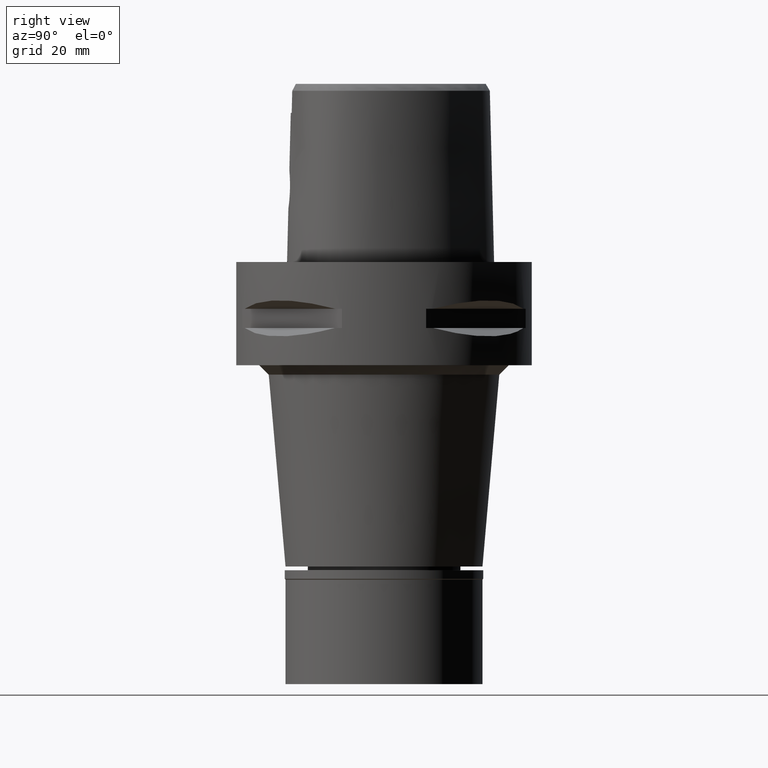
[diagram: clean part render]
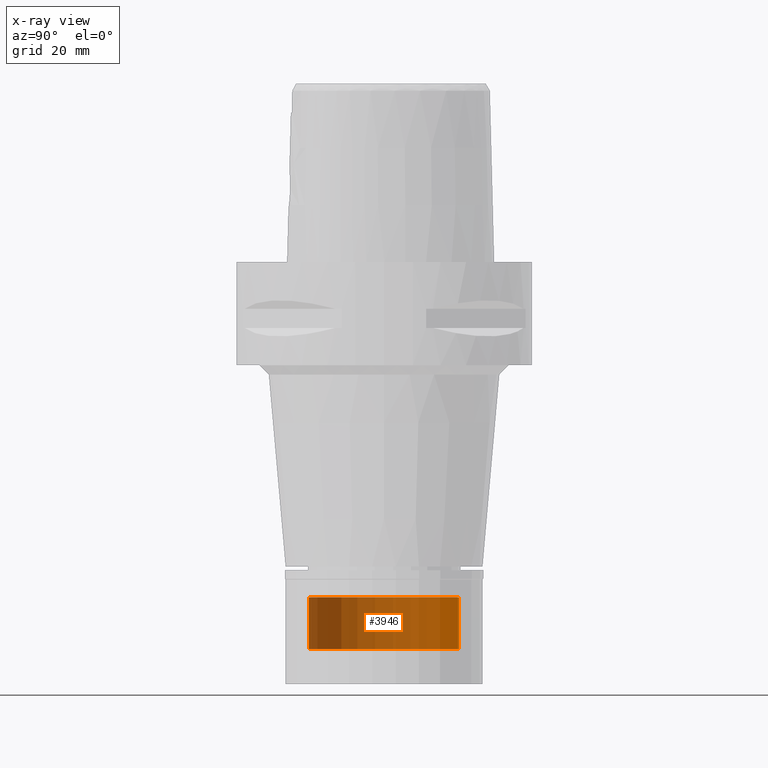
[diagram: x-ray — body ghosted, one internal face saturated and labeled with its STEP entity id]
A machine part, right view, then the same camera in x-ray: the body is ghosted and one INTERNAL B-rep face — a face not visible from any outside direction — is saturated and labeled: STEP entity #3946.
In plain terms, the highlighted cylindrical surface (partial cylindrical patch) has radius 16 mm, axis along (0, 0, -1).
Its self-contained STEP definition (entity closure, byte-faithful):
#85 = AXIS2_PLACEMENT_3D ( 'NONE', #3205, #4763, #1292 ) ;
#156 = ORIENTED_EDGE ( 'NONE', *, *, #3948, .T. ) ;
#237 = DIRECTION ( 'NONE',  ( 0.0000000000000000000, -1.000000000000000000, 0.0000000000000000000 ) ) ;
#368 = EDGE_CURVE ( 'NONE', #1565, #2127, #3422, .T. ) ;
#422 = ORIENTED_EDGE ( 'NONE', *, *, #368, .F. ) ;
#644 = CIRCLE ( 'NONE', #85, 16.00000000000000000 ) ;
#753 = CARTESIAN_POINT ( 'NONE',  ( 0.0000000000000000000, 16.00000000000000000, -71.50000000000000000 ) ) ;
#915 = EDGE_LOOP ( 'NONE', ( #156, #422, #1171, #3331 ) ) ;
#1018 = FACE_OUTER_BOUND ( 'NONE', #915, .T. ) ;
#1092 = VERTEX_POINT ( 'NONE', #2601 ) ;
#1171 = ORIENTED_EDGE ( 'NONE', *, *, #1995, .T. ) ;
#1201 = CARTESIAN_POINT ( 'NONE',  ( 0.0000000000000000000, -16.00000000000000000, -71.50000000000000000 ) ) ;
#1214 = AXIS2_PLACEMENT_3D ( 'NONE', #2155, #3689, #237 ) ;
#1292 = DIRECTION ( 'NONE',  ( 0.0000000000000000000, -1.000000000000000000, 0.0000000000000000000 ) ) ;
#1387 = DIRECTION ( 'NONE',  ( 0.0000000000000000000, 1.000000000000000000, 0.0000000000000000000 ) ) ;
#1565 = VERTEX_POINT ( 'NONE', #1950 ) ;
#1767 = CARTESIAN_POINT ( 'NONE',  ( 0.0000000000000000000, 1.275163479612000028E-14, -82.50000000000000000 ) ) ;
#1950 = CARTESIAN_POINT ( 'NONE',  ( 0.0000000000000000000, -16.00000000000000000, -71.50000000000000000 ) ) ;
#1995 = EDGE_CURVE ( 'NONE', #1565, #4947, #644, .T. ) ;
#2127 = VERTEX_POINT ( 'NONE', #4338 ) ;
#2155 = CARTESIAN_POINT ( 'NONE',  ( 0.0000000000000000000, 1.275163479612000028E-14, 4.125000000000000000 ) ) ;
#2216 = AXIS2_PLACEMENT_3D ( 'NONE', #1767, #4861, #1387 ) ;
#2601 = CARTESIAN_POINT ( 'NONE',  ( 0.0000000000000000000, 16.00000000000000000, -82.50000000000000000 ) ) ;
#2672 = LINE ( 'NONE', #4566, #2675 ) ;
#2675 = VECTOR ( 'NONE', #3439, 1000.000000000000000 ) ;
#2680 = DIRECTION ( 'NONE',  ( 0.0000000000000000000, 0.0000000000000000000, -1.000000000000000000 ) ) ;
#2756 = EDGE_CURVE ( 'NONE', #4947, #1092, #2672, .T. ) ;
#3205 = CARTESIAN_POINT ( 'NONE',  ( 0.0000000000000000000, 1.275163479612000028E-14, -71.50000000000000000 ) ) ;
#3331 = ORIENTED_EDGE ( 'NONE', *, *, #2756, .T. ) ;
#3382 = CIRCLE ( 'NONE', #2216, 16.00000000000000000 ) ;
#3422 = LINE ( 'NONE', #1201, #3563 ) ;
#3439 = DIRECTION ( 'NONE',  ( 0.0000000000000000000, 0.0000000000000000000, -1.000000000000000000 ) ) ;
#3563 = VECTOR ( 'NONE', #2680, 1000.000000000000000 ) ;
#3689 = DIRECTION ( 'NONE',  ( 0.0000000000000000000, 0.0000000000000000000, -1.000000000000000000 ) ) ;
#3946 = ADVANCED_FACE ( 'NONE', ( #1018 ), #4093, .T. ) ;
#3948 = EDGE_CURVE ( 'NONE', #1092, #2127, #3382, .T. ) ;
#4093 = CYLINDRICAL_SURFACE ( 'NONE', #1214, 16.00000000000000000 ) ;
#4338 = CARTESIAN_POINT ( 'NONE',  ( 0.0000000000000000000, -16.00000000000000000, -82.50000000000000000 ) ) ;
#4566 = CARTESIAN_POINT ( 'NONE',  ( 0.0000000000000000000, 16.00000000000000000, -71.50000000000000000 ) ) ;
#4763 = DIRECTION ( 'NONE',  ( 0.0000000000000000000, 0.0000000000000000000, -1.000000000000000000 ) ) ;
#4861 = DIRECTION ( 'NONE',  ( 0.0000000000000000000, 0.0000000000000000000, 1.000000000000000000 ) ) ;
#4947 = VERTEX_POINT ( 'NONE', #753 ) ;